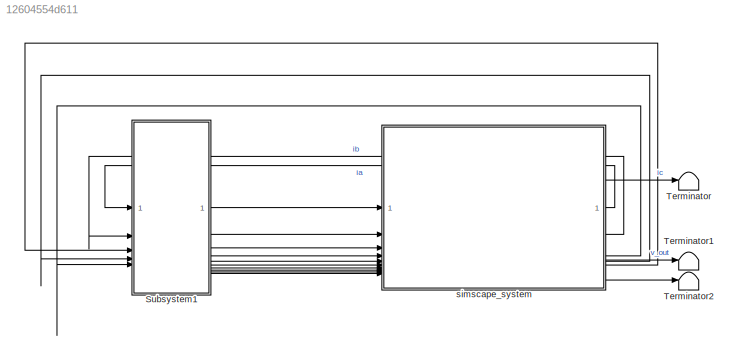
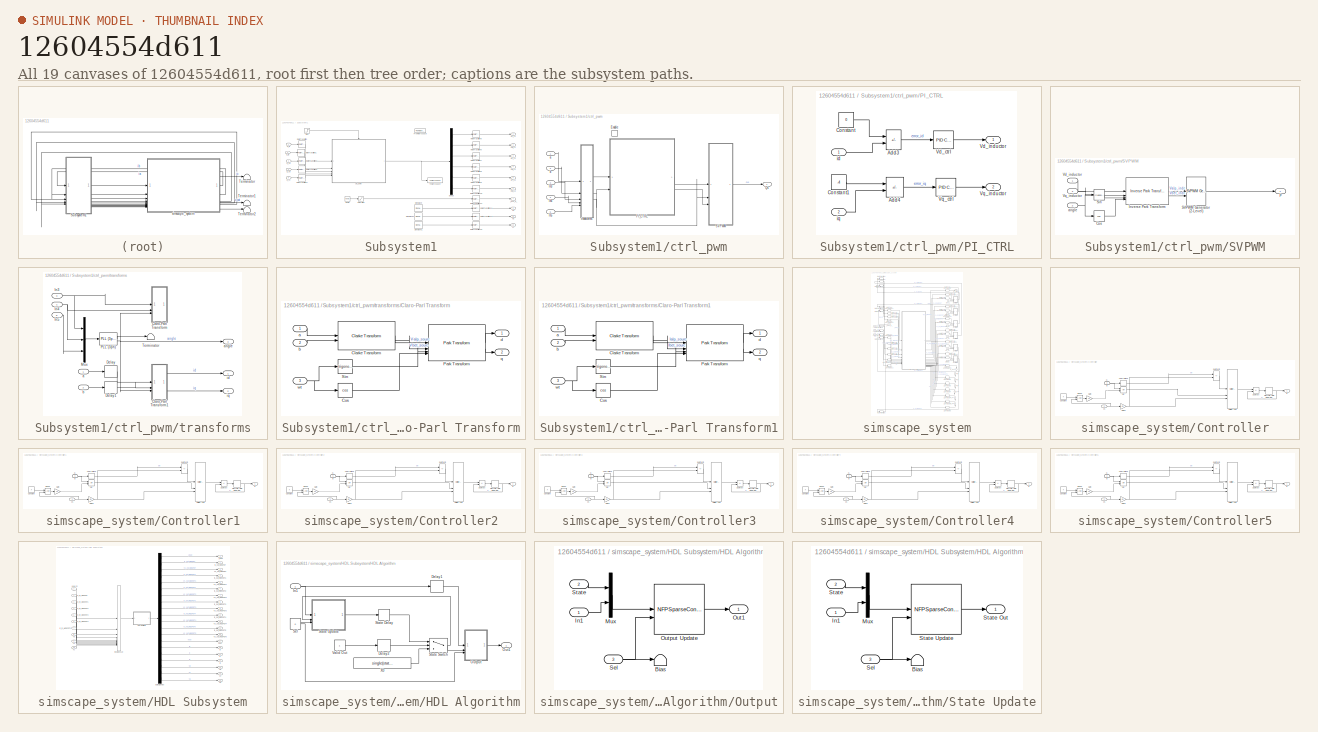
[diagram: thumbnail index - all 19 canvases of the model, root first then tree order]
MODEL slx_12604554d611
KIND model
CONFIG AbsTol = auto
CONFIG EnableMultiTasking = off
CONFIG FixedStep = auto
CONFIG InitFcn = fidelity_pfc_vals;\nload('<userpath>\Desktop\hil\pfc3ph\matlab\sim\sschdl\pfc_desktop_hdl\stateSpaceParameters.mat');
CONFIG MaxStep = auto
CONFIG MinStep = auto
CONFIG RelTol = 1e-3
CONFIG SampleTimeConstraint = Unconstrained
CONFIG SolverName = VariableStepAuto
CONFIG StartTime = 0.0
CONFIG StopTime = 10.0
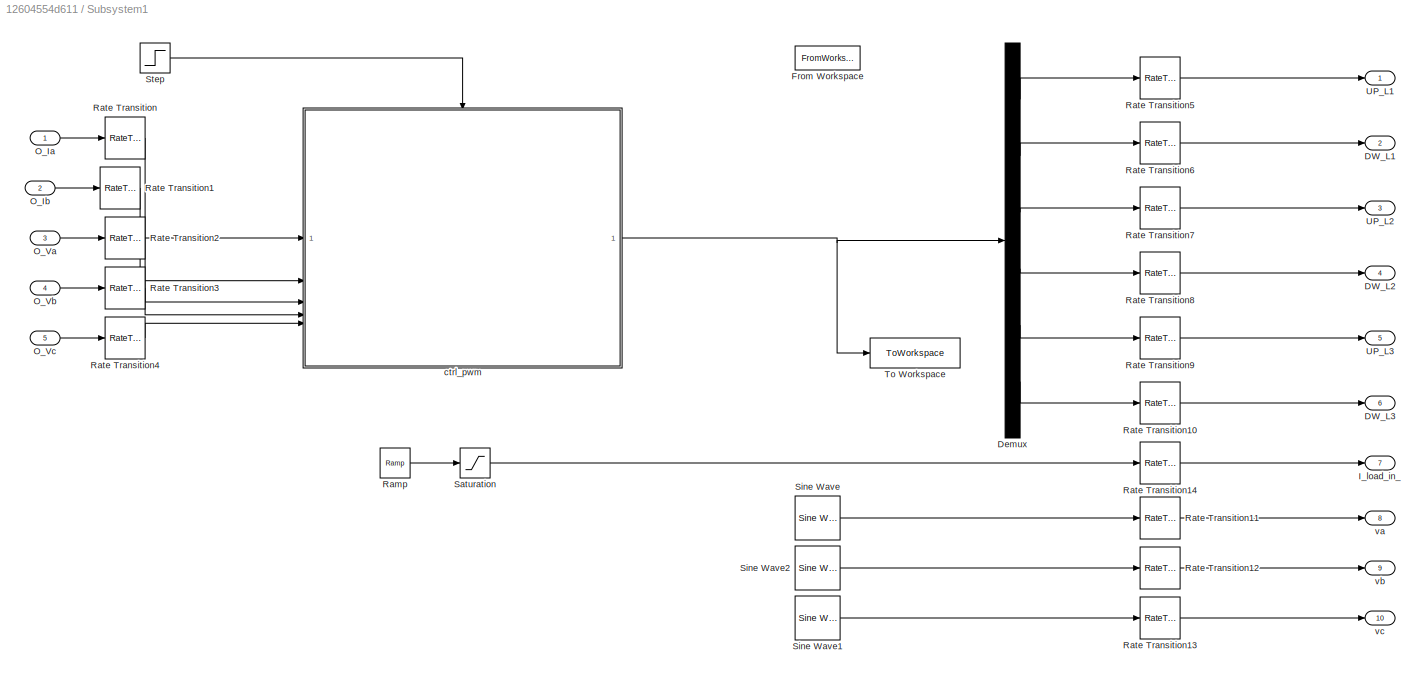
BLOCK [SubSystem] Subsystem1
BLOCK [Outport] Subsystem1/DW_L1
  Port = 2
BLOCK [Outport] Subsystem1/DW_L2
  Port = 4
BLOCK [Outport] Subsystem1/DW_L3
  Port = 6
BLOCK [Demux] Subsystem1/Demux
  Outputs = 6
BLOCK [FromWorkspace] Subsystem1/From Workspace
  Commented = on
  Interpolate = off
  OutputAfterFinalValue = Holding final value
  SampleTime = t_ss
  VariableName = pwm
  ZeroCross = off
BLOCK [Outport] Subsystem1/I_load_in_
  Port = 7
BLOCK [Inport] Subsystem1/O_Ia
BLOCK [Inport] Subsystem1/O_Ib
  Port = 2
BLOCK [Inport] Subsystem1/O_Va
  Port = 3
BLOCK [Inport] Subsystem1/O_Vb
  Port = 4
BLOCK [Inport] Subsystem1/O_Vc
  Port = 5
BLOCK [Reference] Subsystem1/Ramp  REF=simulink/Sources/Ramp
  SourceBlock = simulink/Sources/Ramp
  SourceType = Ramp
BLOCK [RateTransition] Subsystem1/Rate Transition
  OutPortSampleTime = t_ss
BLOCK [RateTransition] Subsystem1/Rate Transition1
  OutPortSampleTime = t_ss
BLOCK [RateTransition] Subsystem1/Rate Transition10
BLOCK [RateTransition] Subsystem1/Rate Transition11
BLOCK [RateTransition] Subsystem1/Rate Transition12
BLOCK [RateTransition] Subsystem1/Rate Transition13
BLOCK [RateTransition] Subsystem1/Rate Transition14
  OutPortSampleTime = t_ss
BLOCK [RateTransition] Subsystem1/Rate Transition2
  OutPortSampleTime = t_ss
BLOCK [RateTransition] Subsystem1/Rate Transition3
  OutPortSampleTime = t_ss
BLOCK [RateTransition] Subsystem1/Rate Transition4
  OutPortSampleTime = t_ss
BLOCK [RateTransition] Subsystem1/Rate Transition5
BLOCK [RateTransition] Subsystem1/Rate Transition6
BLOCK [RateTransition] Subsystem1/Rate Transition7
BLOCK [RateTransition] Subsystem1/Rate Transition8
BLOCK [RateTransition] Subsystem1/Rate Transition9
BLOCK [Saturate] Subsystem1/Saturation
  UpperLimit = 2
BLOCK [Reference] Subsystem1/Sine Wave  REF=dspsrcs4/Sine Wave
  SourceBlock = dspsrcs4/Sine Wave
  SourceType = Sine Wave
BLOCK [Reference] Subsystem1/Sine Wave1  REF=dspsrcs4/Sine Wave
  SourceBlock = dspsrcs4/Sine Wave
  SourceType = Sine Wave
BLOCK [Reference] Subsystem1/Sine Wave2  REF=dspsrcs4/Sine Wave
  SourceBlock = dspsrcs4/Sine Wave
  SourceType = Sine Wave
BLOCK [Step] Subsystem1/Step
  SampleTime = 0
  Time = 2/50
BLOCK [ToWorkspace] Subsystem1/To Workspace
  FixptAsFi = on
  MaxDataPoints = inf
  SampleTime = -1
  SaveFormat = Timeseries
  VariableName = pwm
BLOCK [Outport] Subsystem1/UP_L1
BLOCK [Outport] Subsystem1/UP_L2
  Port = 3
BLOCK [Outport] Subsystem1/UP_L3
  Port = 5
BLOCK [SubSystem] Subsystem1/ctrl_pwm
BLOCK [EnablePort] Subsystem1/ctrl_pwm/Enable
BLOCK [Inport] Subsystem1/ctrl_pwm/In3
  Port = 3
BLOCK [Inport] Subsystem1/ctrl_pwm/In4
  Port = 4
BLOCK [Inport] Subsystem1/ctrl_pwm/In5
  Port = 5
BLOCK [SubSystem] Subsystem1/ctrl_pwm/PI_CTRL
BLOCK [Sum] Subsystem1/ctrl_pwm/PI_CTRL/Add3
  IconShape = rectangular
  Inputs = +-
BLOCK [Sum] Subsystem1/ctrl_pwm/PI_CTRL/Add4
  IconShape = rectangular
  Inputs = +-
BLOCK [Constant] Subsystem1/ctrl_pwm/PI_CTRL/Constant
  SampleTime = t_ss
  Value = 0
BLOCK [Constant] Subsystem1/ctrl_pwm/PI_CTRL/Constant1
  SampleTime = t_ss
  Value = -4
BLOCK [Reference] Subsystem1/ctrl_pwm/PI_CTRL/Vd_ctrl  REF=slpidlib/PID Controller
  SourceBlock = slpidlib/PID Controller
  SourceType = PID 1dof
BLOCK [Outport] Subsystem1/ctrl_pwm/PI_CTRL/Vd_inductor
BLOCK [Reference] Subsystem1/ctrl_pwm/PI_CTRL/Vq_ctrl  REF=slpidlib/PID Controller
  SourceBlock = slpidlib/PID Controller
  SourceType = PID 1dof
BLOCK [Outport] Subsystem1/ctrl_pwm/PI_CTRL/Vq_inductor
  Port = 2
BLOCK [Inport] Subsystem1/ctrl_pwm/PI_CTRL/id
BLOCK [Inport] Subsystem1/ctrl_pwm/PI_CTRL/iq
  Port = 2
BLOCK [Outport] Subsystem1/ctrl_pwm/Qs
BLOCK [SubSystem] Subsystem1/ctrl_pwm/SVPWM
BLOCK [Trigonometry] Subsystem1/ctrl_pwm/SVPWM/Cos
  Operator = cos
BLOCK [Reference] Subsystem1/ctrl_pwm/SVPWM/Inverse Park Transform  REF=mcbcontrolslib/Inverse Park Transform
  SourceBlock = mcbcontrolslib/Inverse Park Transform
  SourceType = Inverse Park Transform
BLOCK [Outport] Subsystem1/ctrl_pwm/SVPWM/P
BLOCK [Reference] Subsystem1/ctrl_pwm/SVPWM/SVPWM Generator (2-Level)  REF=spsSVPWMGenerator2LevelLib/SVPWM Generator
(2-Level)
  SourceBlock = spsSVPWMGenerator2LevelLib/SVPWM Generator\n(2-Level)
  SourceType = SVPWM Generator (2-Level)
BLOCK [Trigonometry] Subsystem1/ctrl_pwm/SVPWM/Sin
BLOCK [Inport] Subsystem1/ctrl_pwm/SVPWM/Vd_inductor
BLOCK [Inport] Subsystem1/ctrl_pwm/SVPWM/Vq_inductor
  Port = 3
BLOCK [Inport] Subsystem1/ctrl_pwm/SVPWM/angle
  Port = 2
BLOCK [Inport] Subsystem1/ctrl_pwm/a
BLOCK [Inport] Subsystem1/ctrl_pwm/b
  Port = 2
BLOCK [SubSystem] Subsystem1/ctrl_pwm/transforms
BLOCK [SubSystem] Subsystem1/ctrl_pwm/transforms/Claro-Parl Transform
  Commented = on
BLOCK [Reference] Subsystem1/ctrl_pwm/transforms/Claro-Parl Transform/Clarke Transform  REF=mcbcontrolslib/Clarke Transform
  SourceBlock = mcbcontrolslib/Clarke Transform
  SourceType = Clarke Transform
BLOCK [Trigonometry] Subsystem1/ctrl_pwm/transforms/Claro-Parl Transform/Cos
  Operator = cos
BLOCK [Reference] Subsystem1/ctrl_pwm/transforms/Claro-Parl Transform/Park Transform  REF=mcbcontrolslib/Park Transform
  SourceBlock = mcbcontrolslib/Park Transform
  SourceType = Park Transform
BLOCK [Trigonometry] Subsystem1/ctrl_pwm/transforms/Claro-Parl Transform/Sin
BLOCK [Inport] Subsystem1/ctrl_pwm/transforms/Claro-Parl Transform/a
BLOCK [Inport] Subsystem1/ctrl_pwm/transforms/Claro-Parl Transform/b
  Port = 2
BLOCK [Outport] Subsystem1/ctrl_pwm/transforms/Claro-Parl Transform/d
BLOCK [Outport] Subsystem1/ctrl_pwm/transforms/Claro-Parl Transform/q
  Port = 2
BLOCK [Inport] Subsystem1/ctrl_pwm/transforms/Claro-Parl Transform/wt
  Port = 3
BLOCK [SubSystem] Subsystem1/ctrl_pwm/transforms/Claro-Parl Transform1
BLOCK [Reference] Subsystem1/ctrl_pwm/transforms/Claro-Parl Transform1/Clarke Transform  REF=mcbcontrolslib/Clarke Transform
  SourceBlock = mcbcontrolslib/Clarke Transform
  SourceType = Clarke Transform
BLOCK [Trigonometry] Subsystem1/ctrl_pwm/transforms/Claro-Parl Transform1/Cos
  Operator = cos
BLOCK [Reference] Subsystem1/ctrl_pwm/transforms/Claro-Parl Transform1/Park Transform  REF=mcbcontrolslib/Park Transform
  SourceBlock = mcbcontrolslib/Park Transform
  SourceType = Park Transform
BLOCK [Trigonometry] Subsystem1/ctrl_pwm/transforms/Claro-Parl Transform1/Sin
BLOCK [Inport] Subsystem1/ctrl_pwm/transforms/Claro-Parl Transform1/a
BLOCK [Inport] Subsystem1/ctrl_pwm/transforms/Claro-Parl Transform1/b
  Port = 2
BLOCK [Outport] Subsystem1/ctrl_pwm/transforms/Claro-Parl Transform1/d
BLOCK [Outport] Subsystem1/ctrl_pwm/transforms/Claro-Parl Transform1/q
  Port = 2
BLOCK [Inport] Subsystem1/ctrl_pwm/transforms/Claro-Parl Transform1/wt
  Port = 3
BLOCK [Delay] Subsystem1/ctrl_pwm/transforms/Delay
  DelayLength = 1
  InputPortMap = u0
BLOCK [Delay] Subsystem1/ctrl_pwm/transforms/Delay1
  DelayLength = 1
  InputPortMap = u0
BLOCK [Inport] Subsystem1/ctrl_pwm/transforms/In3
  Port = 3
BLOCK [Inport] Subsystem1/ctrl_pwm/transforms/In4
  Port = 4
BLOCK [Inport] Subsystem1/ctrl_pwm/transforms/In5
  Port = 5
BLOCK [Mux] Subsystem1/ctrl_pwm/transforms/Mux
  DisplayOption = bar
  Inputs = 3
BLOCK [Reference] Subsystem1/ctrl_pwm/transforms/PLL (3ph)  REF=spsPLL3phLib/PLL
(3ph)
  SourceBlock = spsPLL3phLib/PLL\n(3ph)
  SourceType = PLL (3ph)
BLOCK [Terminator] Subsystem1/ctrl_pwm/transforms/Terminator
BLOCK [Inport] Subsystem1/ctrl_pwm/transforms/a
BLOCK [Outport] Subsystem1/ctrl_pwm/transforms/angle
  Port = 3
BLOCK [Inport] Subsystem1/ctrl_pwm/transforms/b
  Port = 2
BLOCK [Outport] Subsystem1/ctrl_pwm/transforms/id
BLOCK [Outport] Subsystem1/ctrl_pwm/transforms/iq
  Port = 2
BLOCK [Outport] Subsystem1/va
  Port = 8
BLOCK [Outport] Subsystem1/vb
  Port = 9
BLOCK [Outport] Subsystem1/vc
  Port = 10
BLOCK [Terminator] Terminator
BLOCK [Terminator] Terminator1
BLOCK [Terminator] Terminator2
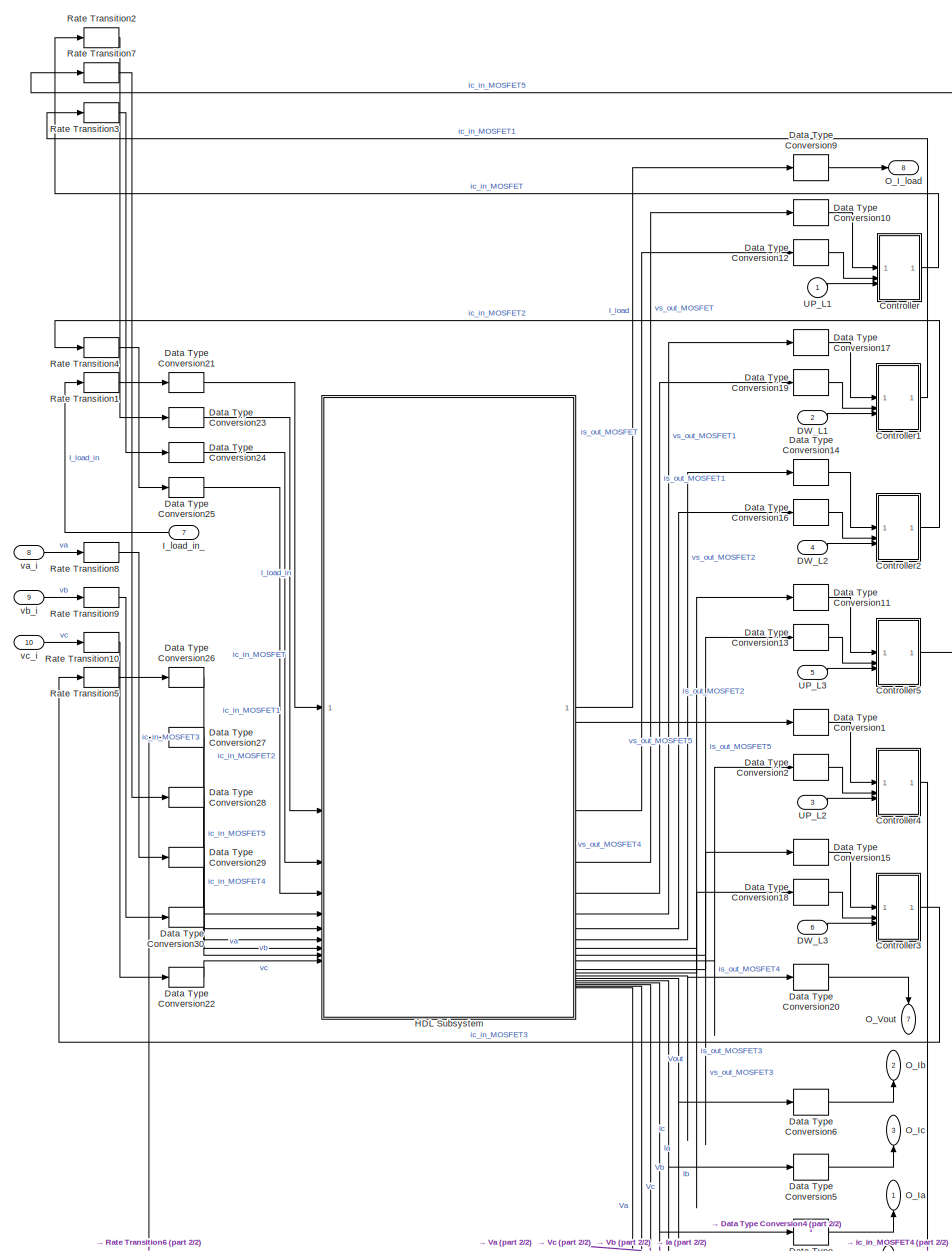
[diagram: simscape_system - part 1/2, most of the canvas]
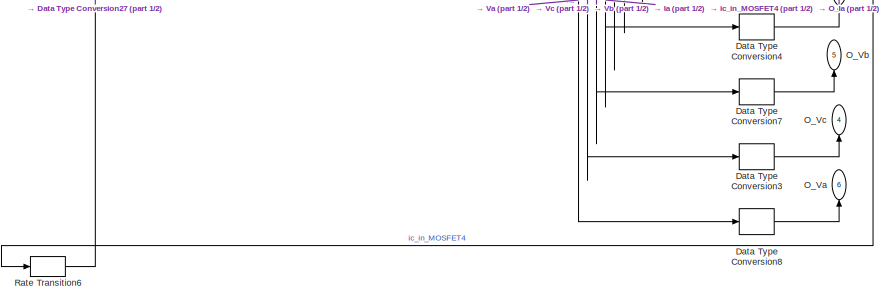
[diagram: simscape_system - part 2/2, full width, bottom band]
BLOCK [SubSystem] simscape_system
BLOCK [SubSystem] simscape_system/Controller
BLOCK [Constant] simscape_system/Controller/Constant
  SampleTime = -1
  Value = -.7
BLOCK [DiscreteIntegrator] simscape_system/Controller/Discrete-Time Integrator
  ICPrevOutput = DiscIntNeverNeededParam
  ICPrevScaledInput = DiscIntNeverNeededParam
  InitialConditionSetting = Auto
  IntegratorMethod = Accumulation: Forward Euler
  OutDataTypeStr = Inherit: Inherit via back propagation
  SampleTime = -1
  gainval = 1/s
BLOCK [RelationalOperator] simscape_system/Controller/Equal
  InputSameDT = off
  OutDataTypeStr = boolean
  RndMeth = Simplest
BLOCK [Inport] simscape_system/Controller/G
  Port = 3
BLOCK [Gain] simscape_system/Controller/Gain
  Gain = 10
BLOCK [Gain] simscape_system/Controller/Gain3
  Gain = Gs
  OutDataTypeStr = Inherit: Inherit via back propagation
BLOCK [Reference] simscape_system/Controller/Multiply-Add  REF=hdlsllib/HDL Operations/Multiply-Add
  SourceBlock = hdlsllib/HDL Operations/Multiply-Add
  SourceType = Multiply-Add
BLOCK [Logic] simscape_system/Controller/OR
  AllPortsSameDT = off
  IconShape = distinctive
  Operator = OR
  OutDataTypeStr = boolean
BLOCK [Sum] simscape_system/Controller/Subtract
  IconShape = rectangular
  Inputs = +-
BLOCK [Sum] simscape_system/Controller/Subtract1
  IconShape = rectangular
  Inputs = +-
BLOCK [UnaryMinus] simscape_system/Controller/Unary Minus
BLOCK [Outport] simscape_system/Controller/ic
BLOCK [Inport] simscape_system/Controller/is
  NameLocation = top
  Port = 2
BLOCK [Inport] simscape_system/Controller/vs
BLOCK [SubSystem] simscape_system/Controller1
BLOCK [Constant] simscape_system/Controller1/Constant
  SampleTime = -1
  Value = -.7
BLOCK [DiscreteIntegrator] simscape_system/Controller1/Discrete-Time Integrator
  ICPrevOutput = DiscIntNeverNeededParam
  ICPrevScaledInput = DiscIntNeverNeededParam
  InitialConditionSetting = Auto
  IntegratorMethod = Accumulation: Forward Euler
  OutDataTypeStr = Inherit: Inherit via back propagation
  SampleTime = -1
  gainval = 1/s
BLOCK [RelationalOperator] simscape_system/Controller1/Equal
  InputSameDT = off
  OutDataTypeStr = boolean
  RndMeth = Simplest
BLOCK [Inport] simscape_system/Controller1/G
  Port = 3
BLOCK [Gain] simscape_system/Controller1/Gain
  Gain = 10
BLOCK [Gain] simscape_system/Controller1/Gain3
  Gain = Gs
  OutDataTypeStr = Inherit: Inherit via back propagation
BLOCK [Reference] simscape_system/Controller1/Multiply-Add  REF=hdlsllib/HDL Operations/Multiply-Add
  SourceBlock = hdlsllib/HDL Operations/Multiply-Add
  SourceType = Multiply-Add
BLOCK [Logic] simscape_system/Controller1/OR
  AllPortsSameDT = off
  IconShape = distinctive
  Operator = OR
  OutDataTypeStr = boolean
BLOCK [Sum] simscape_system/Controller1/Subtract
  IconShape = rectangular
  Inputs = +-
BLOCK [Sum] simscape_system/Controller1/Subtract1
  IconShape = rectangular
  Inputs = +-
BLOCK [UnaryMinus] simscape_system/Controller1/Unary Minus
BLOCK [Outport] simscape_system/Controller1/ic
BLOCK [Inport] simscape_system/Controller1/is
  NameLocation = top
  Port = 2
BLOCK [Inport] simscape_system/Controller1/vs
BLOCK [SubSystem] simscape_system/Controller2
BLOCK [Constant] simscape_system/Controller2/Constant
  SampleTime = -1
  Value = -.7
BLOCK [DiscreteIntegrator] simscape_system/Controller2/Discrete-Time Integrator
  ICPrevOutput = DiscIntNeverNeededParam
  ICPrevScaledInput = DiscIntNeverNeededParam
  InitialConditionSetting = Auto
  IntegratorMethod = Accumulation: Forward Euler
  OutDataTypeStr = Inherit: Inherit via back propagation
  SampleTime = -1
  gainval = 1/s
BLOCK [RelationalOperator] simscape_system/Controller2/Equal
  InputSameDT = off
  OutDataTypeStr = boolean
  RndMeth = Simplest
BLOCK [Inport] simscape_system/Controller2/G
  Port = 3
BLOCK [Gain] simscape_system/Controller2/Gain
  Gain = 10
BLOCK [Gain] simscape_system/Controller2/Gain3
  Gain = Gs
  OutDataTypeStr = Inherit: Inherit via back propagation
BLOCK [Reference] simscape_system/Controller2/Multiply-Add  REF=hdlsllib/HDL Operations/Multiply-Add
  SourceBlock = hdlsllib/HDL Operations/Multiply-Add
  SourceType = Multiply-Add
BLOCK [Logic] simscape_system/Controller2/OR
  AllPortsSameDT = off
  IconShape = distinctive
  Operator = OR
  OutDataTypeStr = boolean
BLOCK [Sum] simscape_system/Controller2/Subtract
  IconShape = rectangular
  Inputs = +-
BLOCK [Sum] simscape_system/Controller2/Subtract1
  IconShape = rectangular
  Inputs = +-
BLOCK [UnaryMinus] simscape_system/Controller2/Unary Minus
BLOCK [Outport] simscape_system/Controller2/ic
BLOCK [Inport] simscape_system/Controller2/is
  NameLocation = top
  Port = 2
BLOCK [Inport] simscape_system/Controller2/vs
BLOCK [SubSystem] simscape_system/Controller3
BLOCK [Constant] simscape_system/Controller3/Constant
  SampleTime = -1
  Value = -.7
BLOCK [DiscreteIntegrator] simscape_system/Controller3/Discrete-Time Integrator
  ICPrevOutput = DiscIntNeverNeededParam
  ICPrevScaledInput = DiscIntNeverNeededParam
  InitialConditionSetting = Auto
  IntegratorMethod = Accumulation: Forward Euler
  OutDataTypeStr = Inherit: Inherit via back propagation
  SampleTime = -1
  gainval = 1/s
BLOCK [RelationalOperator] simscape_system/Controller3/Equal
  InputSameDT = off
  OutDataTypeStr = boolean
  RndMeth = Simplest
BLOCK [Inport] simscape_system/Controller3/G
  Port = 3
BLOCK [Gain] simscape_system/Controller3/Gain
  Gain = 10
BLOCK [Gain] simscape_system/Controller3/Gain3
  Gain = Gs
  OutDataTypeStr = Inherit: Inherit via back propagation
BLOCK [Reference] simscape_system/Controller3/Multiply-Add  REF=hdlsllib/HDL Operations/Multiply-Add
  SourceBlock = hdlsllib/HDL Operations/Multiply-Add
  SourceType = Multiply-Add
BLOCK [Logic] simscape_system/Controller3/OR
  AllPortsSameDT = off
  IconShape = distinctive
  Operator = OR
  OutDataTypeStr = boolean
BLOCK [Sum] simscape_system/Controller3/Subtract
  IconShape = rectangular
  Inputs = +-
BLOCK [Sum] simscape_system/Controller3/Subtract1
  IconShape = rectangular
  Inputs = +-
BLOCK [UnaryMinus] simscape_system/Controller3/Unary Minus
BLOCK [Outport] simscape_system/Controller3/ic
BLOCK [Inport] simscape_system/Controller3/is
  NameLocation = top
  Port = 2
BLOCK [Inport] simscape_system/Controller3/vs
BLOCK [SubSystem] simscape_system/Controller4
BLOCK [Constant] simscape_system/Controller4/Constant
  SampleTime = -1
  Value = -.7
BLOCK [DiscreteIntegrator] simscape_system/Controller4/Discrete-Time Integrator
  ICPrevOutput = DiscIntNeverNeededParam
  ICPrevScaledInput = DiscIntNeverNeededParam
  InitialConditionSetting = Auto
  IntegratorMethod = Accumulation: Forward Euler
  OutDataTypeStr = Inherit: Inherit via back propagation
  SampleTime = -1
  gainval = 1/s
BLOCK [RelationalOperator] simscape_system/Controller4/Equal
  InputSameDT = off
  OutDataTypeStr = boolean
  RndMeth = Simplest
BLOCK [Inport] simscape_system/Controller4/G
  Port = 3
BLOCK [Gain] simscape_system/Controller4/Gain
  Gain = 10
BLOCK [Gain] simscape_system/Controller4/Gain3
  Gain = Gs
  OutDataTypeStr = Inherit: Inherit via back propagation
BLOCK [Reference] simscape_system/Controller4/Multiply-Add  REF=hdlsllib/HDL Operations/Multiply-Add
  SourceBlock = hdlsllib/HDL Operations/Multiply-Add
  SourceType = Multiply-Add
BLOCK [Logic] simscape_system/Controller4/OR
  AllPortsSameDT = off
  IconShape = distinctive
  Operator = OR
  OutDataTypeStr = boolean
BLOCK [Sum] simscape_system/Controller4/Subtract
  IconShape = rectangular
  Inputs = +-
BLOCK [Sum] simscape_system/Controller4/Subtract1
  IconShape = rectangular
  Inputs = +-
BLOCK [UnaryMinus] simscape_system/Controller4/Unary Minus
BLOCK [Outport] simscape_system/Controller4/ic
BLOCK [Inport] simscape_system/Controller4/is
  NameLocation = top
  Port = 2
BLOCK [Inport] simscape_system/Controller4/vs
BLOCK [SubSystem] simscape_system/Controller5
BLOCK [Constant] simscape_system/Controller5/Constant
  SampleTime = -1
  Value = -.7
BLOCK [DiscreteIntegrator] simscape_system/Controller5/Discrete-Time Integrator
  ICPrevOutput = DiscIntNeverNeededParam
  ICPrevScaledInput = DiscIntNeverNeededParam
  InitialConditionSetting = Auto
  IntegratorMethod = Accumulation: Forward Euler
  OutDataTypeStr = Inherit: Inherit via back propagation
  SampleTime = -1
  gainval = 1/s
BLOCK [RelationalOperator] simscape_system/Controller5/Equal
  InputSameDT = off
  OutDataTypeStr = boolean
  RndMeth = Simplest
BLOCK [Inport] simscape_system/Controller5/G
  Port = 3
BLOCK [Gain] simscape_system/Controller5/Gain
  Gain = 10
BLOCK [Gain] simscape_system/Controller5/Gain3
  Gain = Gs
  OutDataTypeStr = Inherit: Inherit via back propagation
BLOCK [Reference] simscape_system/Controller5/Multiply-Add  REF=hdlsllib/HDL Operations/Multiply-Add
  SourceBlock = hdlsllib/HDL Operations/Multiply-Add
  SourceType = Multiply-Add
BLOCK [Logic] simscape_system/Controller5/OR
  AllPortsSameDT = off
  IconShape = distinctive
  Operator = OR
  OutDataTypeStr = boolean
BLOCK [Sum] simscape_system/Controller5/Subtract
  IconShape = rectangular
  Inputs = +-
BLOCK [Sum] simscape_system/Controller5/Subtract1
  IconShape = rectangular
  Inputs = +-
BLOCK [UnaryMinus] simscape_system/Controller5/Unary Minus
BLOCK [Outport] simscape_system/Controller5/ic
BLOCK [Inport] simscape_system/Controller5/is
  NameLocation = top
  Port = 2
BLOCK [Inport] simscape_system/Controller5/vs
BLOCK [Inport] simscape_system/DW_L1
  Port = 2
BLOCK [Inport] simscape_system/DW_L2
  Port = 4
BLOCK [Inport] simscape_system/DW_L3
  Port = 6
BLOCK [DataTypeConversion] simscape_system/Data Type Conversion1
  LockScale = on
  RndMeth = Nearest
  SaturateOnIntegerOverflow = off
BLOCK [DataTypeConversion] simscape_system/Data Type Conversion10
  LockScale = on
  RndMeth = Nearest
  SaturateOnIntegerOverflow = off
BLOCK [DataTypeConversion] simscape_system/Data Type Conversion11
  LockScale = on
  RndMeth = Nearest
  SaturateOnIntegerOverflow = off
BLOCK [DataTypeConversion] simscape_system/Data Type Conversion12
  LockScale = on
  RndMeth = Nearest
  SaturateOnIntegerOverflow = off
BLOCK [DataTypeConversion] simscape_system/Data Type Conversion13
  LockScale = on
  RndMeth = Nearest
  SaturateOnIntegerOverflow = off
BLOCK [DataTypeConversion] simscape_system/Data Type Conversion14
  LockScale = on
  RndMeth = Nearest
  SaturateOnIntegerOverflow = off
BLOCK [DataTypeConversion] simscape_system/Data Type Conversion15
  LockScale = on
  RndMeth = Nearest
  SaturateOnIntegerOverflow = off
BLOCK [DataTypeConversion] simscape_system/Data Type Conversion16
  LockScale = on
  RndMeth = Nearest
  SaturateOnIntegerOverflow = off
BLOCK [DataTypeConversion] simscape_system/Data Type Conversion17
  LockScale = on
  RndMeth = Nearest
  SaturateOnIntegerOverflow = off
BLOCK [DataTypeConversion] simscape_system/Data Type Conversion18
  LockScale = on
  RndMeth = Nearest
  SaturateOnIntegerOverflow = off
BLOCK [DataTypeConversion] simscape_system/Data Type Conversion19
  LockScale = on
  RndMeth = Nearest
  SaturateOnIntegerOverflow = off
BLOCK [DataTypeConversion] simscape_system/Data Type Conversion2
  LockScale = on
  RndMeth = Nearest
  SaturateOnIntegerOverflow = off
BLOCK [DataTypeConversion] simscape_system/Data Type Conversion20
  LockScale = on
  RndMeth = Nearest
  SaturateOnIntegerOverflow = off
BLOCK [DataTypeConversion] simscape_system/Data Type Conversion21
  OutDataTypeStr = single
  RndMeth = Nearest
  SaturateOnIntegerOverflow = off
BLOCK [DataTypeConversion] simscape_system/Data Type Conversion22
  OutDataTypeStr = single
  RndMeth = Nearest
  SaturateOnIntegerOverflow = off
BLOCK [DataTypeConversion] simscape_system/Data Type Conversion23
  OutDataTypeStr = single
  RndMeth = Nearest
  SaturateOnIntegerOverflow = off
BLOCK [DataTypeConversion] simscape_system/Data Type Conversion24
  OutDataTypeStr = single
  RndMeth = Nearest
  SaturateOnIntegerOverflow = off
BLOCK [DataTypeConversion] simscape_system/Data Type Conversion25
  OutDataTypeStr = single
  RndMeth = Nearest
  SaturateOnIntegerOverflow = off
BLOCK [DataTypeConversion] simscape_system/Data Type Conversion26
  OutDataTypeStr = single
  RndMeth = Nearest
  SaturateOnIntegerOverflow = off
BLOCK [DataTypeConversion] simscape_system/Data Type Conversion27
  OutDataTypeStr = single
  RndMeth = Nearest
  SaturateOnIntegerOverflow = off
BLOCK [DataTypeConversion] simscape_system/Data Type Conversion28
  OutDataTypeStr = single
  RndMeth = Nearest
  SaturateOnIntegerOverflow = off
BLOCK [DataTypeConversion] simscape_system/Data Type Conversion29
  OutDataTypeStr = single
  RndMeth = Nearest
  SaturateOnIntegerOverflow = off
BLOCK [DataTypeConversion] simscape_system/Data Type Conversion3
  LockScale = on
  RndMeth = Nearest
  SaturateOnIntegerOverflow = off
BLOCK [DataTypeConversion] simscape_system/Data Type Conversion30
  OutDataTypeStr = single
  RndMeth = Nearest
  SaturateOnIntegerOverflow = off
BLOCK [DataTypeConversion] simscape_system/Data Type Conversion4
  LockScale = on
  RndMeth = Nearest
  SaturateOnIntegerOverflow = off
BLOCK [DataTypeConversion] simscape_system/Data Type Conversion5
  LockScale = on
  RndMeth = Nearest
  SaturateOnIntegerOverflow = off
BLOCK [DataTypeConversion] simscape_system/Data Type Conversion6
  LockScale = on
  RndMeth = Nearest
  SaturateOnIntegerOverflow = off
BLOCK [DataTypeConversion] simscape_system/Data Type Conversion7
  LockScale = on
  RndMeth = Nearest
  SaturateOnIntegerOverflow = off
BLOCK [DataTypeConversion] simscape_system/Data Type Conversion8
  LockScale = on
  RndMeth = Nearest
  SaturateOnIntegerOverflow = off
BLOCK [DataTypeConversion] simscape_system/Data Type Conversion9
  LockScale = on
  RndMeth = Nearest
  SaturateOnIntegerOverflow = off
BLOCK [SubSystem] simscape_system/HDL Subsystem
BLOCK [SubSystem] simscape_system/HDL Subsystem/HDL Algorithm
BLOCK [Delay] simscape_system/HDL Subsystem/HDL Algorithm/Delay1
  DelayLength = 1
  InputPortMap = u0
BLOCK [Delay] simscape_system/HDL Subsystem/HDL Algorithm/Delay2
  InputPortMap = u0
BLOCK [Inport] simscape_system/HDL Subsystem/HDL Algorithm/In1
BLOCK [Outport] simscape_system/HDL Subsystem/HDL Algorithm/Out1
  VectorParamsAs1DForOutWhenUnconnected = off
BLOCK [SubSystem] simscape_system/HDL Subsystem/HDL Algorithm/Output
BLOCK [Terminator] simscape_system/HDL Subsystem/HDL Algorithm/Output/Bias
BLOCK [Inport] simscape_system/HDL Subsystem/HDL Algorithm/Output/In1
BLOCK [Mux] simscape_system/HDL Subsystem/HDL Algorithm/Output/Mux
  DisplayOption = bar
  Inputs = 2
BLOCK [Outport] simscape_system/HDL Subsystem/HDL Algorithm/Output/Out1
  VectorParamsAs1DForOutWhenUnconnected = off
BLOCK [Reference] simscape_system/HDL Subsystem/HDL Algorithm/Output/Output Update  REF=hdlssclib/NFPSparseConstMultiply
  SourceBlock = hdlssclib/NFPSparseConstMultiply
BLOCK [Inport] simscape_system/HDL Subsystem/HDL Algorithm/Output/Sel
  LockScale = on
  Port = 3
BLOCK [Inport] simscape_system/HDL Subsystem/HDL Algorithm/Output/State
  Port = 2
BLOCK [Constant] simscape_system/HDL Subsystem/HDL Algorithm/Sel
  OutDataTypeStr = uint32
  SampleTime = 5.1282e-07
  Value = 0
BLOCK [Delay] simscape_system/HDL Subsystem/HDL Algorithm/State Delay
  DelayLength = 1
  InitialCondition = single(stateSpaceParameters_1.X0)
  InputPortMap = u0
BLOCK [Switch] simscape_system/HDL Subsystem/HDL Algorithm/State Switch
  Criteria = u2 ~= 0
  InputSameDT = off
  SaturateOnIntegerOverflow = off
BLOCK [SubSystem] simscape_system/HDL Subsystem/HDL Algorithm/State Update
BLOCK [Terminator] simscape_system/HDL Subsystem/HDL Algorithm/State Update/Bias
BLOCK [Inport] simscape_system/HDL Subsystem/HDL Algorithm/State Update/In1
BLOCK [Mux] simscape_system/HDL Subsystem/HDL Algorithm/State Update/Mux
  DisplayOption = bar
  Inputs = 2
BLOCK [Inport] simscape_system/HDL Subsystem/HDL Algorithm/State Update/Sel
  LockScale = on
  Port = 3
BLOCK [Inport] simscape_system/HDL Subsystem/HDL Algorithm/State Update/State
  Port = 2
BLOCK [Outport] simscape_system/HDL Subsystem/HDL Algorithm/State Update/State Out
  OutDataTypeStr = single
  VectorParamsAs1DForOutWhenUnconnected = off
BLOCK [Reference] simscape_system/HDL Subsystem/HDL Algorithm/State Update/State Update  REF=hdlssclib/NFPSparseConstMultiply
  SourceBlock = hdlssclib/NFPSparseConstMultiply
BLOCK [Constant] simscape_system/HDL Subsystem/HDL Algorithm/Valid Out
  OutDataTypeStr = boolean
  SampleTime = 5.128205128205128e-07
BLOCK [Constant] simscape_system/HDL Subsystem/HDL Algorithm/X0
  SampleTime = 5.128205128205128e-07
  Value = single(stateSpaceParameters_1.X0)
BLOCK [Outport] simscape_system/HDL Subsystem/I_load
BLOCK [Inport] simscape_system/HDL Subsystem/I_load_in
BLOCK [Outport] simscape_system/HDL Subsystem/Ia
  Port = 17
BLOCK [Outport] simscape_system/HDL Subsystem/Ib
  Port = 15
BLOCK [Outport] simscape_system/HDL Subsystem/Ic
  Port = 16
BLOCK [Concatenate] simscape_system/HDL Subsystem/Input Concat
  NumInputs = 10
BLOCK [Demux] simscape_system/HDL Subsystem/Output Demux
  Outputs = 20
BLOCK [Outport] simscape_system/HDL Subsystem/Va
  Port = 20
BLOCK [Outport] simscape_system/HDL Subsystem/Vb
  Port = 18
BLOCK [Outport] simscape_system/HDL Subsystem/Vc
  Port = 19
BLOCK [Outport] simscape_system/HDL Subsystem/Vout
  Port = 14
BLOCK [Inport] simscape_system/HDL Subsystem/ic_in_MOSFET
  Port = 2
BLOCK [Inport] simscape_system/HDL Subsystem/ic_in_MOSFET1
  Port = 3
BLOCK [Inport] simscape_system/HDL Subsystem/ic_in_MOSFET2
  Port = 4
BLOCK [Inport] simscape_system/HDL Subsystem/ic_in_MOSFET3
  Port = 5
BLOCK [Inport] simscape_system/HDL Subsystem/ic_in_MOSFET4
  Port = 6
BLOCK [Inport] simscape_system/HDL Subsystem/ic_in_MOSFET5
  Port = 7
BLOCK [Outport] simscape_system/HDL Subsystem/is_out_MOSFET
  Port = 2
BLOCK [Outport] simscape_system/HDL Subsystem/is_out_MOSFET1
  Port = 4
BLOCK [Outport] simscape_system/HDL Subsystem/is_out_MOSFET2
  Port = 6
BLOCK [Outport] simscape_system/HDL Subsystem/is_out_MOSFET3
  Port = 8
BLOCK [Outport] simscape_system/HDL Subsystem/is_out_MOSFET4
  Port = 10
BLOCK [Outport] simscape_system/HDL Subsystem/is_out_MOSFET5
  Port = 12
BLOCK [Inport] simscape_system/HDL Subsystem/va
  Port = 8
BLOCK [Inport] simscape_system/HDL Subsystem/vb
  Port = 9
BLOCK [Inport] simscape_system/HDL Subsystem/vc
  Port = 10
BLOCK [Outport] simscape_system/HDL Subsystem/vs_out_MOSFET
  Port = 3
BLOCK [Outport] simscape_system/HDL Subsystem/vs_out_MOSFET1
  Port = 5
BLOCK [Outport] simscape_system/HDL Subsystem/vs_out_MOSFET2
  Port = 7
BLOCK [Outport] simscape_system/HDL Subsystem/vs_out_MOSFET3
  Port = 9
BLOCK [Outport] simscape_system/HDL Subsystem/vs_out_MOSFET4
  Port = 11
BLOCK [Outport] simscape_system/HDL Subsystem/vs_out_MOSFET5
  Port = 13
BLOCK [Inport] simscape_system/I_load_in_
  NameLocation = top
  Port = 7
BLOCK [Outport] simscape_system/O_I_load
  Port = 8
BLOCK [Outport] simscape_system/O_Ia
  NameLocation = right
BLOCK [Outport] simscape_system/O_Ib
  NameLocation = right
  Port = 2
BLOCK [Outport] simscape_system/O_Ic
  NameLocation = right
  Port = 3
BLOCK [Outport] simscape_system/O_Va
  NameLocation = right
  Port = 6
BLOCK [Outport] simscape_system/O_Vb
  NameLocation = right
  Port = 5
BLOCK [Outport] simscape_system/O_Vc
  NameLocation = right
  Port = 4
BLOCK [Outport] simscape_system/O_Vout
  NameLocation = left
  Port = 7
BLOCK [RateTransition] simscape_system/Rate Transition1
  OutPortSampleTime = 5.128205128205128e-07
BLOCK [RateTransition] simscape_system/Rate Transition10
  OutPortSampleTime = 5.128205128205128e-07
BLOCK [RateTransition] simscape_system/Rate Transition2
  OutPortSampleTime = 5.128205128205128e-07
BLOCK [RateTransition] simscape_system/Rate Transition3
  OutPortSampleTime = 5.128205128205128e-07
BLOCK [RateTransition] simscape_system/Rate Transition4
  OutPortSampleTime = 5.128205128205128e-07
BLOCK [RateTransition] simscape_system/Rate Transition5
  OutPortSampleTime = 5.128205128205128e-07
BLOCK [RateTransition] simscape_system/Rate Transition6
  OutPortSampleTime = 5.128205128205128e-07
BLOCK [RateTransition] simscape_system/Rate Transition7
  OutPortSampleTime = 5.128205128205128e-07
BLOCK [RateTransition] simscape_system/Rate Transition8
  OutPortSampleTime = 5.128205128205128e-07
BLOCK [RateTransition] simscape_system/Rate Transition9
  OutPortSampleTime = 5.128205128205128e-07
BLOCK [Inport] simscape_system/UP_L1
BLOCK [Inport] simscape_system/UP_L2
  Port = 3
BLOCK [Inport] simscape_system/UP_L3
  Port = 5
BLOCK [Inport] simscape_system/va_i
  LockScale = on
  Port = 8
BLOCK [Inport] simscape_system/vb_i
  LockScale = on
  Port = 9
BLOCK [Inport] simscape_system/vc_i
  LockScale = on
  Port = 10
LINE Subsystem1/Demux:1 -> Subsystem1/Rate Transition5:1
LINE Subsystem1/Demux:2 -> Subsystem1/Rate Transition6:1
LINE Subsystem1/Demux:3 -> Subsystem1/Rate Transition7:1
LINE Subsystem1/Demux:4 -> Subsystem1/Rate Transition8:1
LINE Subsystem1/Demux:5 -> Subsystem1/Rate Transition9:1
LINE Subsystem1/Demux:6 -> Subsystem1/Rate Transition10:1
LINE Subsystem1/O_Ia:1 -> Subsystem1/Rate Transition:1
LINE Subsystem1/O_Ib:1 -> Subsystem1/Rate Transition1:1
LINE Subsystem1/O_Va:1 -> Subsystem1/Rate Transition2:1
LINE Subsystem1/O_Vb:1 -> Subsystem1/Rate Transition3:1
LINE Subsystem1/O_Vc:1 -> Subsystem1/Rate Transition4:1
LINE Subsystem1/Ramp:1 -> Subsystem1/Saturation:1
LINE Subsystem1/Rate Transition10:1 -> Subsystem1/DW_L3:1
LINE Subsystem1/Rate Transition11:1 -> Subsystem1/va:1
LINE Subsystem1/Rate Transition12:1 -> Subsystem1/vb:1
LINE Subsystem1/Rate Transition13:1 -> Subsystem1/vc:1
LINE Subsystem1/Rate Transition14:1 -> Subsystem1/I_load_in_:1
LINE Subsystem1/Rate Transition1:1 -> Subsystem1/ctrl_pwm:2
LINE Subsystem1/Rate Transition2:1 -> Subsystem1/ctrl_pwm:3
LINE Subsystem1/Rate Transition3:1 -> Subsystem1/ctrl_pwm:4
LINE Subsystem1/Rate Transition4:1 -> Subsystem1/ctrl_pwm:5
LINE Subsystem1/Rate Transition5:1 -> Subsystem1/UP_L1:1
LINE Subsystem1/Rate Transition6:1 -> Subsystem1/DW_L1:1
LINE Subsystem1/Rate Transition7:1 -> Subsystem1/UP_L2:1
LINE Subsystem1/Rate Transition8:1 -> Subsystem1/DW_L2:1
LINE Subsystem1/Rate Transition9:1 -> Subsystem1/UP_L3:1
LINE Subsystem1/Rate Transition:1 -> Subsystem1/ctrl_pwm:1
LINE Subsystem1/Saturation:1 -> Subsystem1/Rate Transition14:1
LINE Subsystem1/Sine Wave1:1 -> Subsystem1/Rate Transition13:1
LINE Subsystem1/Sine Wave2:1 -> Subsystem1/Rate Transition12:1
LINE Subsystem1/Sine Wave:1 -> Subsystem1/Rate Transition11:1
LINE Subsystem1/Step:1 -> Subsystem1/ctrl_pwm:enable
LINE Subsystem1/ctrl_pwm/In3:1 -> Subsystem1/ctrl_pwm/transforms:3
LINE Subsystem1/ctrl_pwm/In4:1 -> Subsystem1/ctrl_pwm/transforms:4
LINE Subsystem1/ctrl_pwm/In5:1 -> Subsystem1/ctrl_pwm/transforms:5
LINE Subsystem1/ctrl_pwm/PI_CTRL/Add3:1 -> Subsystem1/ctrl_pwm/PI_CTRL/Vd_ctrl:1
LINE Subsystem1/ctrl_pwm/PI_CTRL/Add4:1 -> Subsystem1/ctrl_pwm/PI_CTRL/Vq_ctrl:1
LINE Subsystem1/ctrl_pwm/PI_CTRL/Constant1:1 -> Subsystem1/ctrl_pwm/PI_CTRL/Add4:1
LINE Subsystem1/ctrl_pwm/PI_CTRL/Constant:1 -> Subsystem1/ctrl_pwm/PI_CTRL/Add3:1
LINE Subsystem1/ctrl_pwm/PI_CTRL/Vd_ctrl:1 -> Subsystem1/ctrl_pwm/PI_CTRL/Vd_inductor:1
LINE Subsystem1/ctrl_pwm/PI_CTRL/Vq_ctrl:1 -> Subsystem1/ctrl_pwm/PI_CTRL/Vq_inductor:1
LINE Subsystem1/ctrl_pwm/PI_CTRL/id:1 -> Subsystem1/ctrl_pwm/PI_CTRL/Add3:2
LINE Subsystem1/ctrl_pwm/PI_CTRL/iq:1 -> Subsystem1/ctrl_pwm/PI_CTRL/Add4:2
LINE Subsystem1/ctrl_pwm/PI_CTRL:1 -> Subsystem1/ctrl_pwm/SVPWM:1
LINE Subsystem1/ctrl_pwm/PI_CTRL:2 -> Subsystem1/ctrl_pwm/SVPWM:3
LINE Subsystem1/ctrl_pwm/SVPWM/Cos:1 -> Subsystem1/ctrl_pwm/SVPWM/Inverse Park Transform:4
LINE Subsystem1/ctrl_pwm/SVPWM/Inverse Park Transform:1 -> Subsystem1/ctrl_pwm/SVPWM/SVPWM Generator (2-Level):1
LINE Subsystem1/ctrl_pwm/SVPWM/Inverse Park Transform:2 -> Subsystem1/ctrl_pwm/SVPWM/SVPWM Generator (2-Level):2
LINE Subsystem1/ctrl_pwm/SVPWM/SVPWM Generator (2-Level):1 -> Subsystem1/ctrl_pwm/SVPWM/P:1
LINE Subsystem1/ctrl_pwm/SVPWM/Sin:1 -> Subsystem1/ctrl_pwm/SVPWM/Inverse Park Transform:3
LINE Subsystem1/ctrl_pwm/SVPWM/Vd_inductor:1 -> Subsystem1/ctrl_pwm/SVPWM/Inverse Park Transform:1
LINE Subsystem1/ctrl_pwm/SVPWM/Vq_inductor:1 -> Subsystem1/ctrl_pwm/SVPWM/Inverse Park Transform:2
NET Subsystem1/ctrl_pwm/SVPWM/angle:1 -> Subsystem1/ctrl_pwm/SVPWM/Cos:1, Subsystem1/ctrl_pwm/SVPWM/Sin:1
LINE Subsystem1/ctrl_pwm/SVPWM:1 -> Subsystem1/ctrl_pwm/Qs:1
LINE Subsystem1/ctrl_pwm/a:1 -> Subsystem1/ctrl_pwm/transforms:1
LINE Subsystem1/ctrl_pwm/b:1 -> Subsystem1/ctrl_pwm/transforms:2
LINE Subsystem1/ctrl_pwm/transforms/Claro-Parl Transform/Clarke Transform:1 -> Subsystem1/ctrl_pwm/transforms/Claro-Parl Transform/Park Transform:1
LINE Subsystem1/ctrl_pwm/transforms/Claro-Parl Transform/Clarke Transform:2 -> Subsystem1/ctrl_pwm/transforms/Claro-Parl Transform/Park Transform:2
LINE Subsystem1/ctrl_pwm/transforms/Claro-Parl Transform/Cos:1 -> Subsystem1/ctrl_pwm/transforms/Claro-Parl Transform/Park Transform:4
LINE Subsystem1/ctrl_pwm/transforms/Claro-Parl Transform/Park Transform:1 -> Subsystem1/ctrl_pwm/transforms/Claro-Parl Transform/d:1
LINE Subsystem1/ctrl_pwm/transforms/Claro-Parl Transform/Park Transform:2 -> Subsystem1/ctrl_pwm/transforms/Claro-Parl Transform/q:1
LINE Subsystem1/ctrl_pwm/transforms/Claro-Parl Transform/Sin:1 -> Subsystem1/ctrl_pwm/transforms/Claro-Parl Transform/Park Transform:3
LINE Subsystem1/ctrl_pwm/transforms/Claro-Parl Transform/a:1 -> Subsystem1/ctrl_pwm/transforms/Claro-Parl Transform/Clarke Transform:1
LINE Subsystem1/ctrl_pwm/transforms/Claro-Parl Transform/b:1 -> Subsystem1/ctrl_pwm/transforms/Claro-Parl Transform/Clarke Transform:2
NET Subsystem1/ctrl_pwm/transforms/Claro-Parl Transform/wt:1 -> Subsystem1/ctrl_pwm/transforms/Claro-Parl Transform/Cos:1, Subsystem1/ctrl_pwm/transforms/Claro-Parl Transform/Sin:1
LINE Subsystem1/ctrl_pwm/transforms/Claro-Parl Transform1/Clarke Transform:1 -> Subsystem1/ctrl_pwm/transforms/Claro-Parl Transform1/Park Transform:1
LINE Subsystem1/ctrl_pwm/transforms/Claro-Parl Transform1/Clarke Transform:2 -> Subsystem1/ctrl_pwm/transforms/Claro-Parl Transform1/Park Transform:2
LINE Subsystem1/ctrl_pwm/transforms/Claro-Parl Transform1/Cos:1 -> Subsystem1/ctrl_pwm/transforms/Claro-Parl Transform1/Park Transform:4
LINE Subsystem1/ctrl_pwm/transforms/Claro-Parl Transform1/Park Transform:1 -> Subsystem1/ctrl_pwm/transforms/Claro-Parl Transform1/d:1
LINE Subsystem1/ctrl_pwm/transforms/Claro-Parl Transform1/Park Transform:2 -> Subsystem1/ctrl_pwm/transforms/Claro-Parl Transform1/q:1
LINE Subsystem1/ctrl_pwm/transforms/Claro-Parl Transform1/Sin:1 -> Subsystem1/ctrl_pwm/transforms/Claro-Parl Transform1/Park Transform:3
LINE Subsystem1/ctrl_pwm/transforms/Claro-Parl Transform1/a:1 -> Subsystem1/ctrl_pwm/transforms/Claro-Parl Transform1/Clarke Transform:1
LINE Subsystem1/ctrl_pwm/transforms/Claro-Parl Transform1/b:1 -> Subsystem1/ctrl_pwm/transforms/Claro-Parl Transform1/Clarke Transform:2
NET Subsystem1/ctrl_pwm/transforms/Claro-Parl Transform1/wt:1 -> Subsystem1/ctrl_pwm/transforms/Claro-Parl Transform1/Cos:1, Subsystem1/ctrl_pwm/transforms/Claro-Parl Transform1/Sin:1
LINE Subsystem1/ctrl_pwm/transforms/Claro-Parl Transform1:1 -> Subsystem1/ctrl_pwm/transforms/id:1
LINE Subsystem1/ctrl_pwm/transforms/Claro-Parl Transform1:2 -> Subsystem1/ctrl_pwm/transforms/iq:1
LINE Subsystem1/ctrl_pwm/transforms/Delay1:1 -> Subsystem1/ctrl_pwm/transforms/Claro-Parl Transform1:2
LINE Subsystem1/ctrl_pwm/transforms/Delay:1 -> Subsystem1/ctrl_pwm/transforms/Claro-Parl Transform1:1
NET Subsystem1/ctrl_pwm/transforms/In3:1 -> Subsystem1/ctrl_pwm/transforms/Claro-Parl Transform:1, Subsystem1/ctrl_pwm/transforms/Mux:1
NET Subsystem1/ctrl_pwm/transforms/In4:1 -> Subsystem1/ctrl_pwm/transforms/Claro-Parl Transform:2, Subsystem1/ctrl_pwm/transforms/Mux:2
LINE Subsystem1/ctrl_pwm/transforms/In5:1 -> Subsystem1/ctrl_pwm/transforms/Mux:3
LINE Subsystem1/ctrl_pwm/transforms/Mux:1 -> Subsystem1/ctrl_pwm/transforms/PLL (3ph):1
LINE Subsystem1/ctrl_pwm/transforms/PLL (3ph):1 -> Subsystem1/ctrl_pwm/transforms/Terminator:1
NET Subsystem1/ctrl_pwm/transforms/PLL (3ph):2 -> Subsystem1/ctrl_pwm/transforms/Claro-Parl Transform1:3, Subsystem1/ctrl_pwm/transforms/Claro-Parl Transform:3, Subsystem1/ctrl_pwm/transforms/angle:1
LINE Subsystem1/ctrl_pwm/transforms/a:1 -> Subsystem1/ctrl_pwm/transforms/Delay:1
LINE Subsystem1/ctrl_pwm/transforms/b:1 -> Subsystem1/ctrl_pwm/transforms/Delay1:1
LINE Subsystem1/ctrl_pwm/transforms:1 -> Subsystem1/ctrl_pwm/PI_CTRL:1
LINE Subsystem1/ctrl_pwm/transforms:2 -> Subsystem1/ctrl_pwm/PI_CTRL:2
LINE Subsystem1/ctrl_pwm/transforms:3 -> Subsystem1/ctrl_pwm/SVPWM:2
NET Subsystem1/ctrl_pwm:1 -> Subsystem1/Demux:1, Subsystem1/To Workspace:1
LINE Subsystem1:1 -> simscape_system:1
LINE Subsystem1:10 -> simscape_system:10
LINE Subsystem1:2 -> simscape_system:2
LINE Subsystem1:3 -> simscape_system:3
LINE Subsystem1:4 -> simscape_system:4
LINE Subsystem1:5 -> simscape_system:5
LINE Subsystem1:6 -> simscape_system:6
LINE Subsystem1:7 -> simscape_system:7
LINE Subsystem1:8 -> simscape_system:8
LINE Subsystem1:9 -> simscape_system:9
LINE simscape_system/Controller/Constant:1 -> simscape_system/Controller/Equal:1
NET simscape_system/Controller/Discrete-Time Integrator:1 -> simscape_system/Controller/Subtract:2, simscape_system/Controller/ic:1
LINE simscape_system/Controller/Equal:1 -> simscape_system/Controller/Gain:1
LINE simscape_system/Controller/G:1 -> simscape_system/Controller/OR:1
NET simscape_system/Controller/Gain3:1 -> simscape_system/Controller/Multiply-Add:3, simscape_system/Controller/Subtract1:2
LINE simscape_system/Controller/Gain:1 -> simscape_system/Controller/OR:2
LINE simscape_system/Controller/Multiply-Add:1 -> simscape_system/Controller/Subtract:1
LINE simscape_system/Controller/OR:1 -> simscape_system/Controller/Multiply-Add:2
LINE simscape_system/Controller/Subtract1:1 -> simscape_system/Controller/Multiply-Add:1
LINE simscape_system/Controller/Subtract:1 -> simscape_system/Controller/Discrete-Time Integrator:1
LINE simscape_system/Controller/Unary Minus:1 -> simscape_system/Controller/Subtract1:1
LINE simscape_system/Controller/is:1 -> simscape_system/Controller/Unary Minus:1
NET simscape_system/Controller/vs:1 -> simscape_system/Controller/Equal:2, simscape_system/Controller/Gain3:1
LINE simscape_system/Controller1/Constant:1 -> simscape_system/Controller1/Equal:1
NET simscape_system/Controller1/Discrete-Time Integrator:1 -> simscape_system/Controller1/Subtract:2, simscape_system/Controller1/ic:1
LINE simscape_system/Controller1/Equal:1 -> simscape_system/Controller1/Gain:1
LINE simscape_system/Controller1/G:1 -> simscape_system/Controller1/OR:1
NET simscape_system/Controller1/Gain3:1 -> simscape_system/Controller1/Multiply-Add:3, simscape_system/Controller1/Subtract1:2
LINE simscape_system/Controller1/Gain:1 -> simscape_system/Controller1/OR:2
LINE simscape_system/Controller1/Multiply-Add:1 -> simscape_system/Controller1/Subtract:1
LINE simscape_system/Controller1/OR:1 -> simscape_system/Controller1/Multiply-Add:2
LINE simscape_system/Controller1/Subtract1:1 -> simscape_system/Controller1/Multiply-Add:1
LINE simscape_system/Controller1/Subtract:1 -> simscape_system/Controller1/Discrete-Time Integrator:1
LINE simscape_system/Controller1/Unary Minus:1 -> simscape_system/Controller1/Subtract1:1
LINE simscape_system/Controller1/is:1 -> simscape_system/Controller1/Unary Minus:1
NET simscape_system/Controller1/vs:1 -> simscape_system/Controller1/Equal:2, simscape_system/Controller1/Gain3:1
LINE simscape_system/Controller1:1 -> simscape_system/Rate Transition3:1
LINE simscape_system/Controller2/Constant:1 -> simscape_system/Controller2/Equal:1
NET simscape_system/Controller2/Discrete-Time Integrator:1 -> simscape_system/Controller2/Subtract:2, simscape_system/Controller2/ic:1
LINE simscape_system/Controller2/Equal:1 -> simscape_system/Controller2/Gain:1
LINE simscape_system/Controller2/G:1 -> simscape_system/Controller2/OR:1
NET simscape_system/Controller2/Gain3:1 -> simscape_system/Controller2/Multiply-Add:3, simscape_system/Controller2/Subtract1:2
LINE simscape_system/Controller2/Gain:1 -> simscape_system/Controller2/OR:2
LINE simscape_system/Controller2/Multiply-Add:1 -> simscape_system/Controller2/Subtract:1
LINE simscape_system/Controller2/OR:1 -> simscape_system/Controller2/Multiply-Add:2
LINE simscape_system/Controller2/Subtract1:1 -> simscape_system/Controller2/Multiply-Add:1
LINE simscape_system/Controller2/Subtract:1 -> simscape_system/Controller2/Discrete-Time Integrator:1
LINE simscape_system/Controller2/Unary Minus:1 -> simscape_system/Controller2/Subtract1:1
LINE simscape_system/Controller2/is:1 -> simscape_system/Controller2/Unary Minus:1
NET simscape_system/Controller2/vs:1 -> simscape_system/Controller2/Equal:2, simscape_system/Controller2/Gain3:1
LINE simscape_system/Controller2:1 -> simscape_system/Rate Transition4:1
LINE simscape_system/Controller3/Constant:1 -> simscape_system/Controller3/Equal:1
NET simscape_system/Controller3/Discrete-Time Integrator:1 -> simscape_system/Controller3/Subtract:2, simscape_system/Controller3/ic:1
LINE simscape_system/Controller3/Equal:1 -> simscape_system/Controller3/Gain:1
LINE simscape_system/Controller3/G:1 -> simscape_system/Controller3/OR:1
NET simscape_system/Controller3/Gain3:1 -> simscape_system/Controller3/Multiply-Add:3, simscape_system/Controller3/Subtract1:2
LINE simscape_system/Controller3/Gain:1 -> simscape_system/Controller3/OR:2
LINE simscape_system/Controller3/Multiply-Add:1 -> simscape_system/Controller3/Subtract:1
LINE simscape_system/Controller3/OR:1 -> simscape_system/Controller3/Multiply-Add:2
LINE simscape_system/Controller3/Subtract1:1 -> simscape_system/Controller3/Multiply-Add:1
LINE simscape_system/Controller3/Subtract:1 -> simscape_system/Controller3/Discrete-Time Integrator:1
LINE simscape_system/Controller3/Unary Minus:1 -> simscape_system/Controller3/Subtract1:1
LINE simscape_system/Controller3/is:1 -> simscape_system/Controller3/Unary Minus:1
NET simscape_system/Controller3/vs:1 -> simscape_system/Controller3/Equal:2, simscape_system/Controller3/Gain3:1
LINE simscape_system/Controller3:1 -> simscape_system/Rate Transition5:1
LINE simscape_system/Controller4/Constant:1 -> simscape_system/Controller4/Equal:1
NET simscape_system/Controller4/Discrete-Time Integrator:1 -> simscape_system/Controller4/Subtract:2, simscape_system/Controller4/ic:1
LINE simscape_system/Controller4/Equal:1 -> simscape_system/Controller4/Gain:1
LINE simscape_system/Controller4/G:1 -> simscape_system/Controller4/OR:1
NET simscape_system/Controller4/Gain3:1 -> simscape_system/Controller4/Multiply-Add:3, simscape_system/Controller4/Subtract1:2
LINE simscape_system/Controller4/Gain:1 -> simscape_system/Controller4/OR:2
LINE simscape_system/Controller4/Multiply-Add:1 -> simscape_system/Controller4/Subtract:1
LINE simscape_system/Controller4/OR:1 -> simscape_system/Controller4/Multiply-Add:2
LINE simscape_system/Controller4/Subtract1:1 -> simscape_system/Controller4/Multiply-Add:1
LINE simscape_system/Controller4/Subtract:1 -> simscape_system/Controller4/Discrete-Time Integrator:1
LINE simscape_system/Controller4/Unary Minus:1 -> simscape_system/Controller4/Subtract1:1
LINE simscape_system/Controller4/is:1 -> simscape_system/Controller4/Unary Minus:1
NET simscape_system/Controller4/vs:1 -> simscape_system/Controller4/Equal:2, simscape_system/Controller4/Gain3:1
LINE simscape_system/Controller4:1 -> simscape_system/Rate Transition6:1
LINE simscape_system/Controller5/Constant:1 -> simscape_system/Controller5/Equal:1
NET simscape_system/Controller5/Discrete-Time Integrator:1 -> simscape_system/Controller5/Subtract:2, simscape_system/Controller5/ic:1
LINE simscape_system/Controller5/Equal:1 -> simscape_system/Controller5/Gain:1
LINE simscape_system/Controller5/G:1 -> simscape_system/Controller5/OR:1
NET simscape_system/Controller5/Gain3:1 -> simscape_system/Controller5/Multiply-Add:3, simscape_system/Controller5/Subtract1:2
LINE simscape_system/Controller5/Gain:1 -> simscape_system/Controller5/OR:2
LINE simscape_system/Controller5/Multiply-Add:1 -> simscape_system/Controller5/Subtract:1
LINE simscape_system/Controller5/OR:1 -> simscape_system/Controller5/Multiply-Add:2
LINE simscape_system/Controller5/Subtract1:1 -> simscape_system/Controller5/Multiply-Add:1
LINE simscape_system/Controller5/Subtract:1 -> simscape_system/Controller5/Discrete-Time Integrator:1
LINE simscape_system/Controller5/Unary Minus:1 -> simscape_system/Controller5/Subtract1:1
LINE simscape_system/Controller5/is:1 -> simscape_system/Controller5/Unary Minus:1
NET simscape_system/Controller5/vs:1 -> simscape_system/Controller5/Equal:2, simscape_system/Controller5/Gain3:1
LINE simscape_system/Controller5:1 -> simscape_system/Rate Transition7:1
LINE simscape_system/Controller:1 -> simscape_system/Rate Transition2:1
LINE simscape_system/DW_L1:1 -> simscape_system/Controller1:3
LINE simscape_system/DW_L2:1 -> simscape_system/Controller2:3
LINE simscape_system/DW_L3:1 -> simscape_system/Controller3:3
LINE simscape_system/Data Type Conversion10:1 -> simscape_system/Controller:1
LINE simscape_system/Data Type Conversion11:1 -> simscape_system/Controller5:1
LINE simscape_system/Data Type Conversion12:1 -> simscape_system/Controller:2
LINE simscape_system/Data Type Conversion13:1 -> simscape_system/Controller5:2
LINE simscape_system/Data Type Conversion14:1 -> simscape_system/Controller2:1
LINE simscape_system/Data Type Conversion15:1 -> simscape_system/Controller3:1
LINE simscape_system/Data Type Conversion16:1 -> simscape_system/Controller2:2
LINE simscape_system/Data Type Conversion17:1 -> simscape_system/Controller1:1
LINE simscape_system/Data Type Conversion18:1 -> simscape_system/Controller3:2
LINE simscape_system/Data Type Conversion19:1 -> simscape_system/Controller1:2
LINE simscape_system/Data Type Conversion1:1 -> simscape_system/Controller4:1
LINE simscape_system/Data Type Conversion20:1 -> simscape_system/O_Vout:1
LINE simscape_system/Data Type Conversion21:1 -> simscape_system/HDL Subsystem:1
LINE simscape_system/Data Type Conversion22:1 -> simscape_system/HDL Subsystem:10
LINE simscape_system/Data Type Conversion23:1 -> simscape_system/HDL Subsystem:2
LINE simscape_system/Data Type Conversion24:1 -> simscape_system/HDL Subsystem:3
LINE simscape_system/Data Type Conversion25:1 -> simscape_system/HDL Subsystem:4
LINE simscape_system/Data Type Conversion26:1 -> simscape_system/HDL Subsystem:5
LINE simscape_system/Data Type Conversion27:1 -> simscape_system/HDL Subsystem:6
LINE simscape_system/Data Type Conversion28:1 -> simscape_system/HDL Subsystem:7
LINE simscape_system/Data Type Conversion29:1 -> simscape_system/HDL Subsystem:8
LINE simscape_system/Data Type Conversion2:1 -> simscape_system/Controller4:2
LINE simscape_system/Data Type Conversion30:1 -> simscape_system/HDL Subsystem:9
LINE simscape_system/Data Type Conversion3:1 -> simscape_system/O_Vc:1
LINE simscape_system/Data Type Conversion4:1 -> simscape_system/O_Ia:1
LINE simscape_system/Data Type Conversion5:1 -> simscape_system/O_Ic:1
LINE simscape_system/Data Type Conversion6:1 -> simscape_system/O_Ib:1
LINE simscape_system/Data Type Conversion7:1 -> simscape_system/O_Vb:1
LINE simscape_system/Data Type Conversion8:1 -> simscape_system/O_Va:1
LINE simscape_system/Data Type Conversion9:1 -> simscape_system/O_I_load:1
LINE simscape_system/HDL Subsystem/HDL Algorithm/Delay1:1 -> simscape_system/HDL Subsystem/HDL Algorithm/Output:1
LINE simscape_system/HDL Subsystem/HDL Algorithm/Delay2:1 -> simscape_system/HDL Subsystem/HDL Algorithm/State Switch:2
NET simscape_system/HDL Subsystem/HDL Algorithm/In1:1 -> simscape_system/HDL Subsystem/HDL Algorithm/Delay1:1, simscape_system/HDL Subsystem/HDL Algorithm/State Update:1
LINE simscape_system/HDL Subsystem/HDL Algorithm/Output/In1:1 -> simscape_system/HDL Subsystem/HDL Algorithm/Output/Mux:2
LINE simscape_system/HDL Subsystem/HDL Algorithm/Output/Mux:1 -> simscape_system/HDL Subsystem/HDL Algorithm/Output/Output Update:1
LINE simscape_system/HDL Subsystem/HDL Algorithm/Output/Output Update:1 -> simscape_system/HDL Subsystem/HDL Algorithm/Output/Out1:1
NET simscape_system/HDL Subsystem/HDL Algorithm/Output/Sel:1 -> simscape_system/HDL Subsystem/HDL Algorithm/Output/Bias:1, simscape_system/HDL Subsystem/HDL Algorithm/Output/Output Update:2
LINE simscape_system/HDL Subsystem/HDL Algorithm/Output/State:1 -> simscape_system/HDL Subsystem/HDL Algorithm/Output/Mux:1
LINE simscape_system/HDL Subsystem/HDL Algorithm/Output:1 -> simscape_system/HDL Subsystem/HDL Algorithm/Out1:1
NET simscape_system/HDL Subsystem/HDL Algorithm/Sel:1 -> simscape_system/HDL Subsystem/HDL Algorithm/Output:3, simscape_system/HDL Subsystem/HDL Algorithm/State Update:3
LINE simscape_system/HDL Subsystem/HDL Algorithm/State Delay:1 -> simscape_system/HDL Subsystem/HDL Algorithm/State Switch:1
NET simscape_system/HDL Subsystem/HDL Algorithm/State Switch:1 -> simscape_system/HDL Subsystem/HDL Algorithm/Output:2, simscape_system/HDL Subsystem/HDL Algorithm/State Update:2
LINE simscape_system/HDL Subsystem/HDL Algorithm/State Update/In1:1 -> simscape_system/HDL Subsystem/HDL Algorithm/State Update/Mux:2
LINE simscape_system/HDL Subsystem/HDL Algorithm/State Update/Mux:1 -> simscape_system/HDL Subsystem/HDL Algorithm/State Update/State Update:1
NET simscape_system/HDL Subsystem/HDL Algorithm/State Update/Sel:1 -> simscape_system/HDL Subsystem/HDL Algorithm/State Update/Bias:1, simscape_system/HDL Subsystem/HDL Algorithm/State Update/State Update:2
LINE simscape_system/HDL Subsystem/HDL Algorithm/State Update/State Update:1 -> simscape_system/HDL Subsystem/HDL Algorithm/State Update/State Out:1
LINE simscape_system/HDL Subsystem/HDL Algorithm/State Update/State:1 -> simscape_system/HDL Subsystem/HDL Algorithm/State Update/Mux:1
LINE simscape_system/HDL Subsystem/HDL Algorithm/State Update:1 -> simscape_system/HDL Subsystem/HDL Algorithm/State Delay:1
LINE simscape_system/HDL Subsystem/HDL Algorithm/Valid Out:1 -> simscape_system/HDL Subsystem/HDL Algorithm/Delay2:1
LINE simscape_system/HDL Subsystem/HDL Algorithm/X0:1 -> simscape_system/HDL Subsystem/HDL Algorithm/State Switch:3
LINE simscape_system/HDL Subsystem/HDL Algorithm:1 -> simscape_system/HDL Subsystem/Output Demux:1
LINE simscape_system/HDL Subsystem/I_load_in:1 -> simscape_system/HDL Subsystem/Input Concat:1
LINE simscape_system/HDL Subsystem/Input Concat:1 -> simscape_system/HDL Subsystem/HDL Algorithm:1
LINE simscape_system/HDL Subsystem/Output Demux:1 -> simscape_system/HDL Subsystem/I_load:1
LINE simscape_system/HDL Subsystem/Output Demux:10 -> simscape_system/HDL Subsystem/is_out_MOSFET4:1
LINE simscape_system/HDL Subsystem/Output Demux:11 -> simscape_system/HDL Subsystem/vs_out_MOSFET4:1
LINE simscape_system/HDL Subsystem/Output Demux:12 -> simscape_system/HDL Subsystem/is_out_MOSFET5:1
LINE simscape_system/HDL Subsystem/Output Demux:13 -> simscape_system/HDL Subsystem/vs_out_MOSFET5:1
LINE simscape_system/HDL Subsystem/Output Demux:14 -> simscape_system/HDL Subsystem/Vout:1
LINE simscape_system/HDL Subsystem/Output Demux:15 -> simscape_system/HDL Subsystem/Ib:1
LINE simscape_system/HDL Subsystem/Output Demux:16 -> simscape_system/HDL Subsystem/Ic:1
LINE simscape_system/HDL Subsystem/Output Demux:17 -> simscape_system/HDL Subsystem/Ia:1
LINE simscape_system/HDL Subsystem/Output Demux:18 -> simscape_system/HDL Subsystem/Vb:1
LINE simscape_system/HDL Subsystem/Output Demux:19 -> simscape_system/HDL Subsystem/Vc:1
LINE simscape_system/HDL Subsystem/Output Demux:2 -> simscape_system/HDL Subsystem/is_out_MOSFET:1
LINE simscape_system/HDL Subsystem/Output Demux:20 -> simscape_system/HDL Subsystem/Va:1
LINE simscape_system/HDL Subsystem/Output Demux:3 -> simscape_system/HDL Subsystem/vs_out_MOSFET:1
LINE simscape_system/HDL Subsystem/Output Demux:4 -> simscape_system/HDL Subsystem/is_out_MOSFET1:1
LINE simscape_system/HDL Subsystem/Output Demux:5 -> simscape_system/HDL Subsystem/vs_out_MOSFET1:1
LINE simscape_system/HDL Subsystem/Output Demux:6 -> simscape_system/HDL Subsystem/is_out_MOSFET2:1
LINE simscape_system/HDL Subsystem/Output Demux:7 -> simscape_system/HDL Subsystem/vs_out_MOSFET2:1
LINE simscape_system/HDL Subsystem/Output Demux:8 -> simscape_system/HDL Subsystem/is_out_MOSFET3:1
LINE simscape_system/HDL Subsystem/Output Demux:9 -> simscape_system/HDL Subsystem/vs_out_MOSFET3:1
LINE simscape_system/HDL Subsystem/ic_in_MOSFET1:1 -> simscape_system/HDL Subsystem/Input Concat:3
LINE simscape_system/HDL Subsystem/ic_in_MOSFET2:1 -> simscape_system/HDL Subsystem/Input Concat:4
LINE simscape_system/HDL Subsystem/ic_in_MOSFET3:1 -> simscape_system/HDL Subsystem/Input Concat:5
LINE simscape_system/HDL Subsystem/ic_in_MOSFET4:1 -> simscape_system/HDL Subsystem/Input Concat:6
LINE simscape_system/HDL Subsystem/ic_in_MOSFET5:1 -> simscape_system/HDL Subsystem/Input Concat:7
LINE simscape_system/HDL Subsystem/ic_in_MOSFET:1 -> simscape_system/HDL Subsystem/Input Concat:2
LINE simscape_system/HDL Subsystem/va:1 -> simscape_system/HDL Subsystem/Input Concat:8
LINE simscape_system/HDL Subsystem/vb:1 -> simscape_system/HDL Subsystem/Input Concat:9
LINE simscape_system/HDL Subsystem/vc:1 -> simscape_system/HDL Subsystem/Input Concat:10
LINE simscape_system/HDL Subsystem:1 -> simscape_system/Data Type Conversion9:1
LINE simscape_system/HDL Subsystem:10 -> simscape_system/Data Type Conversion2:1
LINE simscape_system/HDL Subsystem:11 -> simscape_system/Data Type Conversion1:1
LINE simscape_system/HDL Subsystem:12 -> simscape_system/Data Type Conversion13:1
LINE simscape_system/HDL Subsystem:13 -> simscape_system/Data Type Conversion11:1
LINE simscape_system/HDL Subsystem:14 -> simscape_system/Data Type Conversion20:1
LINE simscape_system/HDL Subsystem:15 -> simscape_system/Data Type Conversion6:1
LINE simscape_system/HDL Subsystem:16 -> simscape_system/Data Type Conversion5:1
LINE simscape_system/HDL Subsystem:17 -> simscape_system/Data Type Conversion4:1
LINE simscape_system/HDL Subsystem:18 -> simscape_system/Data Type Conversion7:1
LINE simscape_system/HDL Subsystem:19 -> simscape_system/Data Type Conversion3:1
LINE simscape_system/HDL Subsystem:2 -> simscape_system/Data Type Conversion12:1
LINE simscape_system/HDL Subsystem:20 -> simscape_system/Data Type Conversion8:1
LINE simscape_system/HDL Subsystem:3 -> simscape_system/Data Type Conversion10:1
LINE simscape_system/HDL Subsystem:4 -> simscape_system/Data Type Conversion19:1
LINE simscape_system/HDL Subsystem:5 -> simscape_system/Data Type Conversion17:1
LINE simscape_system/HDL Subsystem:6 -> simscape_system/Data Type Conversion16:1
LINE simscape_system/HDL Subsystem:7 -> simscape_system/Data Type Conversion14:1
LINE simscape_system/HDL Subsystem:8 -> simscape_system/Data Type Conversion18:1
LINE simscape_system/HDL Subsystem:9 -> simscape_system/Data Type Conversion15:1
LINE simscape_system/I_load_in_:1 -> simscape_system/Rate Transition1:1
LINE simscape_system/Rate Transition10:1 -> simscape_system/Data Type Conversion22:1
LINE simscape_system/Rate Transition1:1 -> simscape_system/Data Type Conversion21:1
LINE simscape_system/Rate Transition2:1 -> simscape_system/Data Type Conversion23:1
LINE simscape_system/Rate Transition3:1 -> simscape_system/Data Type Conversion24:1
LINE simscape_system/Rate Transition4:1 -> simscape_system/Data Type Conversion25:1
LINE simscape_system/Rate Transition5:1 -> simscape_system/Data Type Conversion26:1
LINE simscape_system/Rate Transition6:1 -> simscape_system/Data Type Conversion27:1
LINE simscape_system/Rate Transition7:1 -> simscape_system/Data Type Conversion28:1
LINE simscape_system/Rate Transition8:1 -> simscape_system/Data Type Conversion29:1
LINE simscape_system/Rate Transition9:1 -> simscape_system/Data Type Conversion30:1
LINE simscape_system/UP_L1:1 -> simscape_system/Controller:3
LINE simscape_system/UP_L2:1 -> simscape_system/Controller4:3
LINE simscape_system/UP_L3:1 -> simscape_system/Controller5:3
LINE simscape_system/va_i:1 -> simscape_system/Rate Transition8:1
LINE simscape_system/vb_i:1 -> simscape_system/Rate Transition9:1
LINE simscape_system/vc_i:1 -> simscape_system/Rate Transition10:1
LINE simscape_system:1 -> Subsystem1:1
LINE simscape_system:2 -> Subsystem1:2
LINE simscape_system:3 -> Terminator:1
LINE simscape_system:4 -> Subsystem1:5
LINE simscape_system:5 -> Subsystem1:4
LINE simscape_system:6 -> Subsystem1:3
LINE simscape_system:7 -> Terminator1:1
LINE simscape_system:8 -> Terminator2:1
note: NET lines group one-source signal fan-out (src -> all destinations, sorted); 1:1 wires keep LINE
